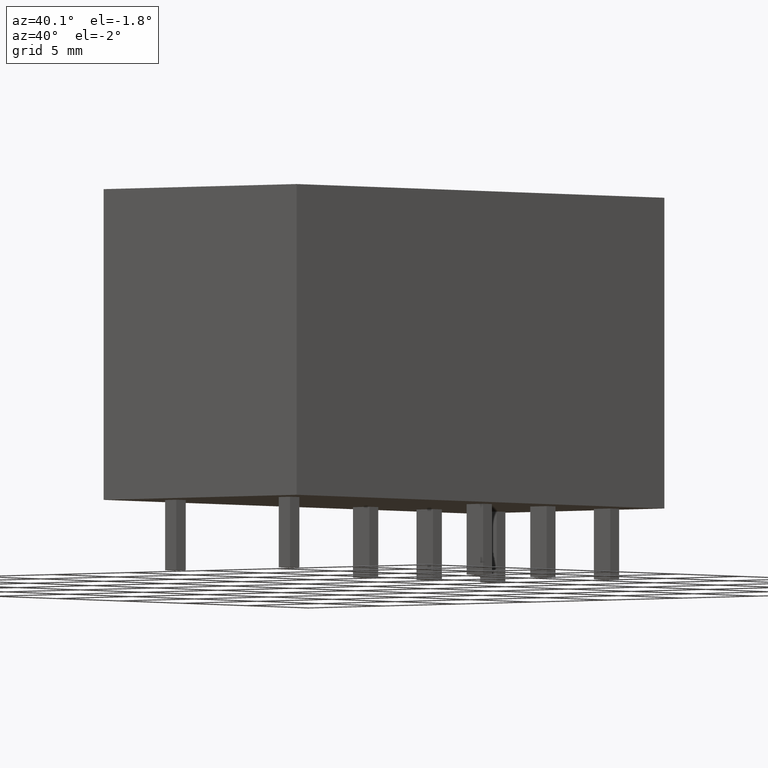
[diagram: clean part render]
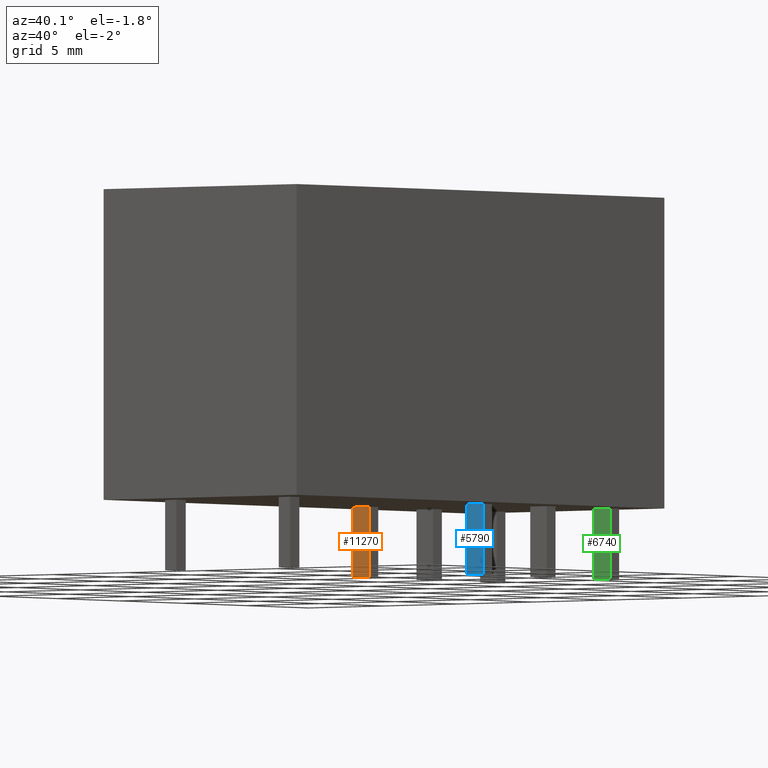
[diagram: same view with three faces highlighted in distinct colors, each labeled with its STEP entity id]
A machine part, auxiliary view with three faces highlighted in distinct colors.
Their STEP definitions:

[orange] entity #11270 — the highlighted planar face has unit normal (-0, -1, 0).
#1820=CARTESIAN_POINT('',(17.3,-3.25,0.));
#1830=VERTEX_POINT('',#1820);
#1860=CARTESIAN_POINT('',(17.3,0.,0.));
#1870=DIRECTION('',(0.,-1.,0.));
#1880=VECTOR('',#1870,1.);
#1890=LINE('',#1860,#1880);
#1900=CARTESIAN_POINT('',(17.3,-4.35,0.));
#1910=VERTEX_POINT('',#1900);
#1920=EDGE_CURVE('',#1830,#1910,#1890,.T.);
#10400=CARTESIAN_POINT('',(17.3,-4.35,3.6));
#10410=DIRECTION('',(0.,1.,0.));
#10420=VECTOR('',#10410,1.);
#10430=LINE('',#10400,#10420);
#10440=CARTESIAN_POINT('',(17.3,-4.35,3.6));
#10450=VERTEX_POINT('',#10440);
#10460=CARTESIAN_POINT('',(17.3,-3.25,3.6));
#10470=VERTEX_POINT('',#10460);
#10480=EDGE_CURVE('',#10450,#10470,#10430,.T.);
#10940=CARTESIAN_POINT('',(17.3,-3.25,0.));
#10950=DIRECTION('',(0.,0.,1.));
#10960=VECTOR('',#10950,1.);
#10970=LINE('',#10940,#10960);
#10980=EDGE_CURVE('',#1830,#10470,#10970,.T.);
#11110=CARTESIAN_POINT('',(17.3,-4.35,0.));
#11120=DIRECTION('',(-1.,0.,0.));
#11130=DIRECTION('',(0.,1.,0.));
#11140=AXIS2_PLACEMENT_3D('',#11110,#11120,#11130);
#11150=PLANE('',#11140);
#11160=ORIENTED_EDGE('',*,*,#10980,.F.);
#11170=ORIENTED_EDGE('',*,*,#10480,.T.);
#11180=CARTESIAN_POINT('',(17.3,-4.35,0.));
#11190=DIRECTION('',(0.,0.,1.));
#11200=VECTOR('',#11190,1.);
#11210=LINE('',#11180,#11200);
#11220=EDGE_CURVE('',#1910,#10450,#11210,.T.);
#11230=ORIENTED_EDGE('',*,*,#11220,.T.);
#11240=ORIENTED_EDGE('',*,*,#1920,.T.);
#11250=EDGE_LOOP('',(#11240,#11230,#11170,#11160));
#11260=FACE_OUTER_BOUND('',#11250,.T.);
#11270=ADVANCED_FACE('',(#11260),#11150,.T.);

[blue] entity #5790 — the highlighted planar face has unit normal (-0, -1, 0).
#540=CARTESIAN_POINT('',(17.3,4.35,0.));
#550=VERTEX_POINT('',#540);
#580=CARTESIAN_POINT('',(17.3,0.,0.));
#590=DIRECTION('',(0.,-1.,0.));
#600=VECTOR('',#590,1.);
#610=LINE('',#580,#600);
#620=CARTESIAN_POINT('',(17.3,3.25,0.));
#630=VERTEX_POINT('',#620);
#640=EDGE_CURVE('',#550,#630,#610,.T.);
#4680=CARTESIAN_POINT('',(17.3,3.25,3.6));
#4690=DIRECTION('',(0.,1.,0.));
#4700=VECTOR('',#4690,1.);
#4710=LINE('',#4680,#4700);
#4720=CARTESIAN_POINT('',(17.3,3.25,3.6));
#4730=VERTEX_POINT('',#4720);
#4740=CARTESIAN_POINT('',(17.3,4.35,3.6));
#4750=VERTEX_POINT('',#4740);
#4760=EDGE_CURVE('',#4730,#4750,#4710,.T.);
#5460=CARTESIAN_POINT('',(17.3,4.35,0.));
#5470=DIRECTION('',(0.,0.,1.));
#5480=VECTOR('',#5470,1.);
#5490=LINE('',#5460,#5480);
#5500=EDGE_CURVE('',#550,#4750,#5490,.T.);
#5630=CARTESIAN_POINT('',(17.3,3.25,0.));
#5640=DIRECTION('',(-1.,0.,0.));
#5650=DIRECTION('',(0.,1.,0.));
#5660=AXIS2_PLACEMENT_3D('',#5630,#5640,#5650);
#5670=PLANE('',#5660);
#5680=ORIENTED_EDGE('',*,*,#5500,.F.);
#5690=ORIENTED_EDGE('',*,*,#4760,.T.);
#5700=CARTESIAN_POINT('',(17.3,3.25,0.));
#5710=DIRECTION('',(0.,0.,1.));
#5720=VECTOR('',#5710,1.);
#5730=LINE('',#5700,#5720);
#5740=EDGE_CURVE('',#630,#4730,#5730,.T.);
#5750=ORIENTED_EDGE('',*,*,#5740,.T.);
#5760=ORIENTED_EDGE('',*,*,#640,.T.);
#5770=EDGE_LOOP('',(#5760,#5750,#5690,#5680));
#5780=FACE_OUTER_BOUND('',#5770,.T.);
#5790=ADVANCED_FACE('',(#5780),#5670,.T.);

[green] entity #6740 — the highlighted planar face has unit normal (-0, -1, 0).
#740=CARTESIAN_POINT('',(27.4,0.,0.));
#750=DIRECTION('',(0.,-1.,0.));
#760=VECTOR('',#750,1.);
#770=LINE('',#740,#760);
#780=CARTESIAN_POINT('',(27.4,4.35,0.));
#790=VERTEX_POINT('',#780);
#800=CARTESIAN_POINT('',(27.4,3.25,0.));
#810=VERTEX_POINT('',#800);
#820=EDGE_CURVE('',#790,#810,#770,.T.);
#6110=CARTESIAN_POINT('',(27.4,3.25,3.6));
#6120=DIRECTION('',(0.,1.,0.));
#6130=VECTOR('',#6120,1.);
#6140=LINE('',#6110,#6130);
#6150=CARTESIAN_POINT('',(27.4,3.25,3.6));
#6160=VERTEX_POINT('',#6150);
#6170=CARTESIAN_POINT('',(27.4,4.35,3.6));
#6180=VERTEX_POINT('',#6170);
#6190=EDGE_CURVE('',#6160,#6180,#6140,.T.);
#6530=CARTESIAN_POINT('',(27.4,3.25,0.));
#6540=DIRECTION('',(-1.,0.,0.));
#6550=DIRECTION('',(0.,1.,0.));
#6560=AXIS2_PLACEMENT_3D('',#6530,#6540,#6550);
#6570=PLANE('',#6560);
#6580=CARTESIAN_POINT('',(27.4,4.35,0.));
#6590=DIRECTION('',(0.,0.,1.));
#6600=VECTOR('',#6590,1.);
#6610=LINE('',#6580,#6600);
#6620=EDGE_CURVE('',#790,#6180,#6610,.T.);
#6630=ORIENTED_EDGE('',*,*,#6620,.F.);
#6640=ORIENTED_EDGE('',*,*,#6190,.T.);
#6650=CARTESIAN_POINT('',(27.4,3.25,0.));
#6660=DIRECTION('',(0.,0.,1.));
#6670=VECTOR('',#6660,1.);
#6680=LINE('',#6650,#6670);
#6690=EDGE_CURVE('',#810,#6160,#6680,.T.);
#6700=ORIENTED_EDGE('',*,*,#6690,.T.);
#6710=ORIENTED_EDGE('',*,*,#820,.T.);
#6720=EDGE_LOOP('',(#6710,#6700,#6640,#6630));
#6730=FACE_OUTER_BOUND('',#6720,.T.);
#6740=ADVANCED_FACE('',(#6730),#6570,.T.);